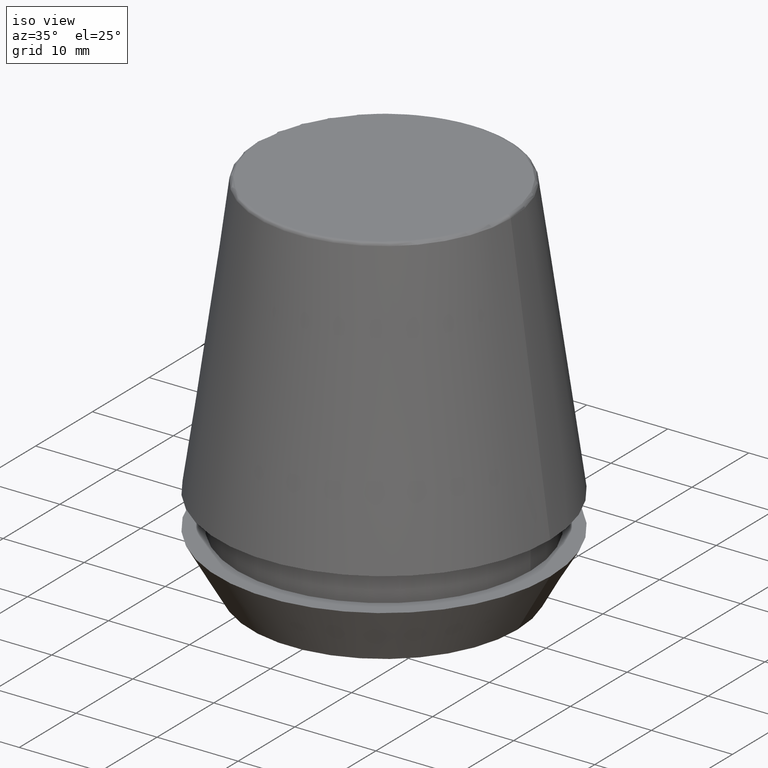
[diagram: clean part render]
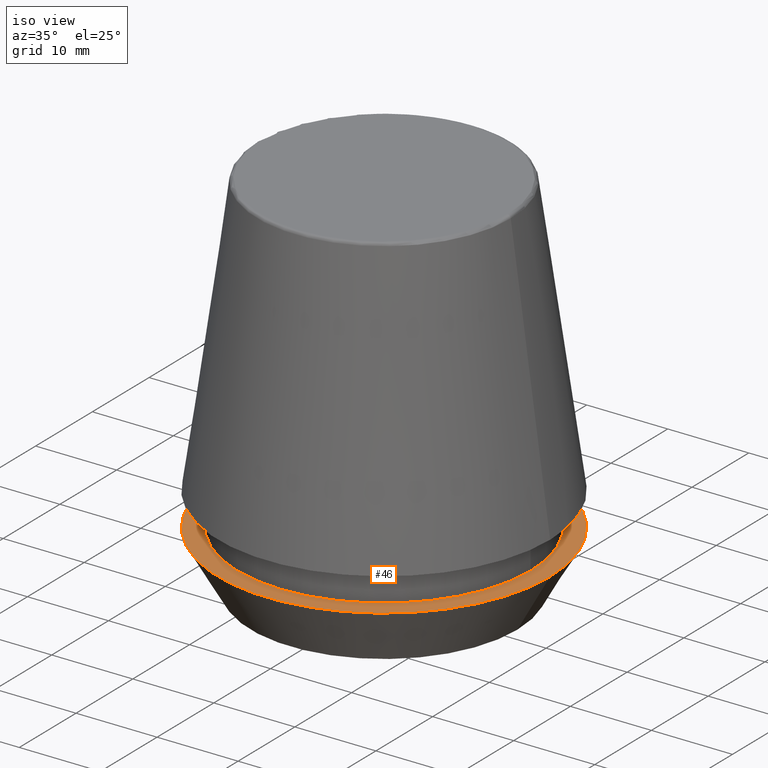
[diagram: same view with one face highlighted and labeled with its STEP entity id]
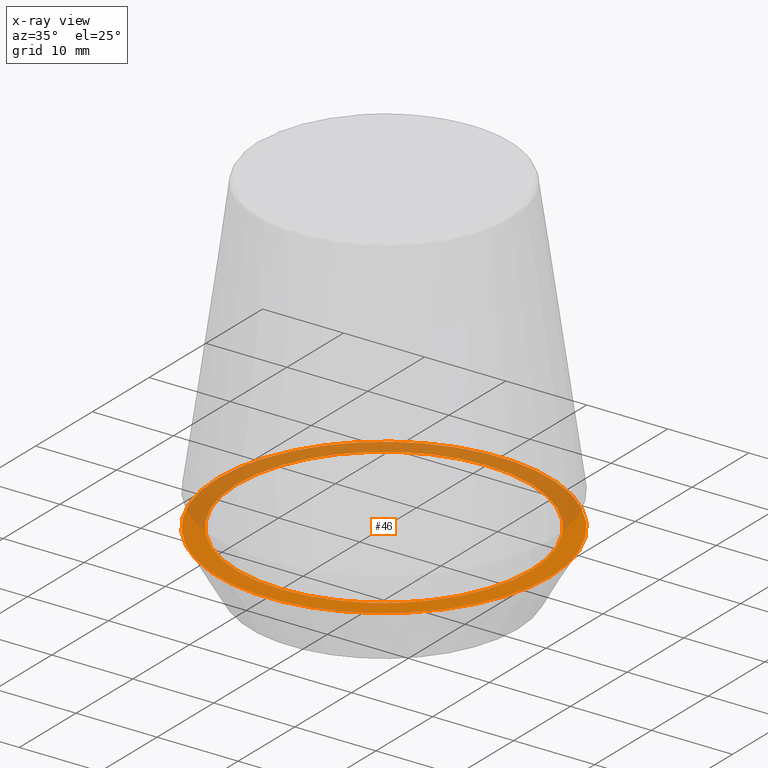
[diagram: x-ray of the same camera — body ghosted, the highlighted face saturated]
A machine part, iso view. The second image highlights one B-rep face of the part: STEP entity #46.
The next image is the same camera in x-ray: the body ghosted, the highlighted face saturated — about 47% of this face is hidden behind the body in this view.
In plain terms, the highlighted planar face has unit normal (0, 0, -1).
Its self-contained STEP definition (entity closure, byte-faithful):
#20 = DIRECTION ( 'NONE',  ( 1.000000000000000000, 0.0000000000000000000, 0.0000000000000000000 ) ) ;
#28 = CIRCLE ( 'NONE', #308, 20.50000000000000000 ) ;
#33 = DIRECTION ( 'NONE',  ( 1.000000000000000000, 0.0000000000000000000, 0.0000000000000000000 ) ) ;
#35 = VERTEX_POINT ( 'NONE', #317 ) ;
#40 = CARTESIAN_POINT ( 'NONE',  ( 0.0000000000000000000, 20.50000000000000000, 7.000000000000002700 ) ) ;
#46 = ADVANCED_FACE ( 'NONE', ( #349, #88 ), #94, .F. ) ;
#59 = CARTESIAN_POINT ( 'NONE',  ( 0.0000000000000000000, 0.0000000000000000000, 7.000000000000006200 ) ) ;
#60 = CIRCLE ( 'NONE', #236, 18.10000000000000100 ) ;
#63 = AXIS2_PLACEMENT_3D ( 'NONE', #59, #248, #33 ) ;
#88 = FACE_OUTER_BOUND ( 'NONE', #219, .T. ) ;
#89 = CARTESIAN_POINT ( 'NONE',  ( 18.10000000000000100, 0.0000000000000000000, 6.999999999999999100 ) ) ;
#94 = PLANE ( 'NONE',  #98 ) ;
#95 = ORIENTED_EDGE ( 'NONE', *, *, #103, .T. ) ;
#98 = AXIS2_PLACEMENT_3D ( 'NONE', #40, #253, #290 ) ;
#103 = EDGE_CURVE ( 'NONE', #35, #330, #351, .T. ) ;
#109 = CARTESIAN_POINT ( 'NONE',  ( 20.50000000000000000, 0.0000000000000000000, 7.000000000000006200 ) ) ;
#128 = CARTESIAN_POINT ( 'NONE',  ( 0.0000000000000000000, 0.0000000000000000000, 6.999999999999999100 ) ) ;
#137 = DIRECTION ( 'NONE',  ( -0.0000000000000000000, -0.0000000000000000000, 1.000000000000000000 ) ) ;
#158 = DIRECTION ( 'NONE',  ( 1.000000000000000000, 0.0000000000000000000, 0.0000000000000000000 ) ) ;
#171 = CARTESIAN_POINT ( 'NONE',  ( 0.0000000000000000000, 0.0000000000000000000, 6.999999999999999100 ) ) ;
#176 = VERTEX_POINT ( 'NONE', #89 ) ;
#202 = VERTEX_POINT ( 'NONE', #331 ) ;
#206 = EDGE_LOOP ( 'NONE', ( #291, #227 ) ) ;
#219 = EDGE_LOOP ( 'NONE', ( #269, #95 ) ) ;
#220 = EDGE_CURVE ( 'NONE', #176, #202, #224, .T. ) ;
#224 = CIRCLE ( 'NONE', #373, 18.10000000000000100 ) ;
#227 = ORIENTED_EDGE ( 'NONE', *, *, #286, .F. ) ;
#229 = DIRECTION ( 'NONE',  ( -0.0000000000000000000, -0.0000000000000000000, 1.000000000000000000 ) ) ;
#236 = AXIS2_PLACEMENT_3D ( 'NONE', #128, #353, #158 ) ;
#248 = DIRECTION ( 'NONE',  ( -0.0000000000000000000, -0.0000000000000000000, 1.000000000000000000 ) ) ;
#253 = DIRECTION ( 'NONE',  ( 0.0000000000000000000, 0.0000000000000000000, -1.000000000000000000 ) ) ;
#268 = DIRECTION ( 'NONE',  ( 1.000000000000000000, 0.0000000000000000000, 0.0000000000000000000 ) ) ;
#269 = ORIENTED_EDGE ( 'NONE', *, *, #270, .T. ) ;
#270 = EDGE_CURVE ( 'NONE', #330, #35, #28, .T. ) ;
#286 = EDGE_CURVE ( 'NONE', #202, #176, #60, .T. ) ;
#290 = DIRECTION ( 'NONE',  ( -1.000000000000000000, 0.0000000000000000000, -0.0000000000000000000 ) ) ;
#291 = ORIENTED_EDGE ( 'NONE', *, *, #220, .F. ) ;
#308 = AXIS2_PLACEMENT_3D ( 'NONE', #327, #137, #20 ) ;
#317 = CARTESIAN_POINT ( 'NONE',  ( -20.50000000000000000, 2.510525938252074100E-015, 7.000000000000006200 ) ) ;
#327 = CARTESIAN_POINT ( 'NONE',  ( 0.0000000000000000000, 0.0000000000000000000, 7.000000000000006200 ) ) ;
#330 = VERTEX_POINT ( 'NONE', #109 ) ;
#331 = CARTESIAN_POINT ( 'NONE',  ( -18.10000000000000100, 2.216610706456709600E-015, 6.999999999999999100 ) ) ;
#349 = FACE_BOUND ( 'NONE', #206, .T. ) ;
#351 = CIRCLE ( 'NONE', #63, 20.50000000000000000 ) ;
#353 = DIRECTION ( 'NONE',  ( -0.0000000000000000000, -0.0000000000000000000, 1.000000000000000000 ) ) ;
#373 = AXIS2_PLACEMENT_3D ( 'NONE', #171, #229, #268 ) ;